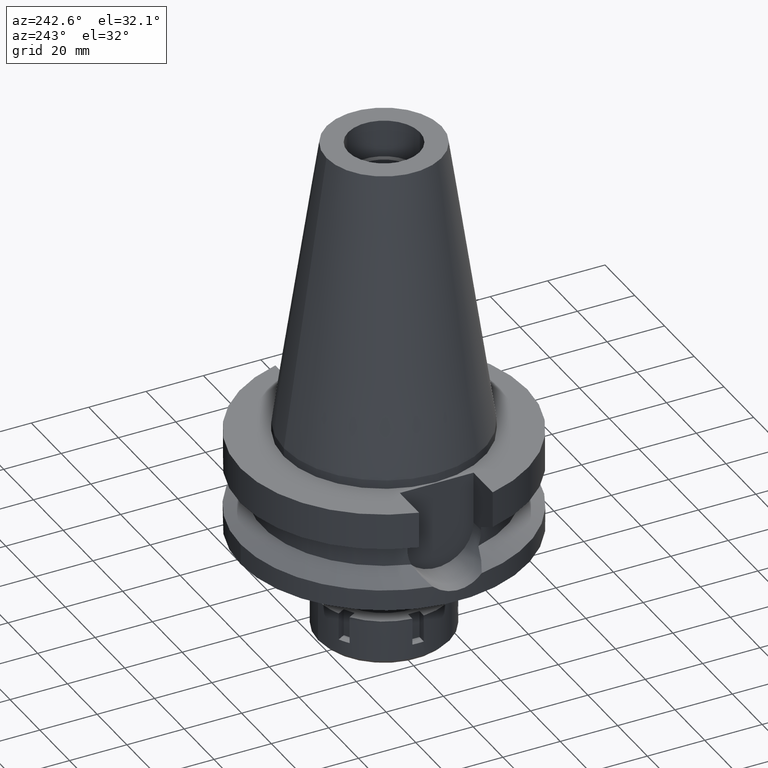
[diagram: clean part render]
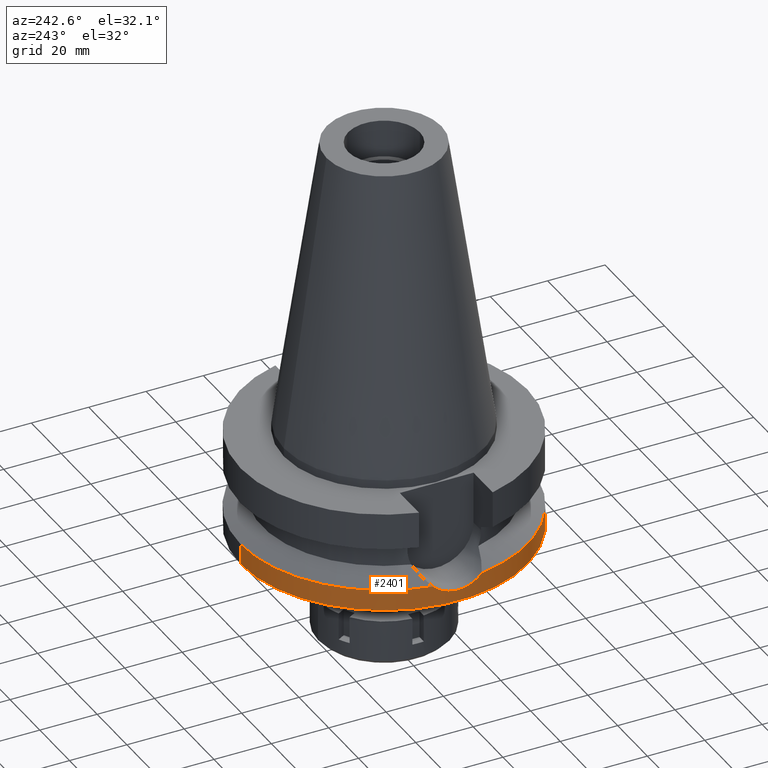
[diagram: same view with one face highlighted and labeled with its STEP entity id]
A machine part, auxiliary view. The second image highlights one B-rep face of the part: STEP entity #2401.
In plain terms, the highlighted cylindrical surface (partial cylindrical patch) has radius 50 mm, axis along (0, 0, -1).
Its self-contained STEP definition (entity closure, byte-faithful):
#23 = CARTESIAN_POINT ( 'NONE',  ( 0.0000000000000000000, -50.00000000000000000, -30.73730776426999967 ) ) ;
#44 = CARTESIAN_POINT ( 'NONE',  ( -49.57428995787913095, -6.510997232708690241, -32.22853959678655400 ) ) ;
#83 = CARTESIAN_POINT ( 'NONE',  ( -49.79012209380309883, 4.576194113386331530, -33.15754248270432925 ) ) ;
#106 = CARTESIAN_POINT ( 'NONE',  ( -49.84651032207489152, -3.920896850693406321, -33.39006912582598829 ) ) ;
#134 = CIRCLE ( 'NONE', #2354, 50.00000000000000000 ) ;
#140 = CARTESIAN_POINT ( 'NONE',  ( -49.81887950449319646, -4.253215501423126987, -33.27643327981128607 ) ) ;
#158 = CARTESIAN_POINT ( 'NONE',  ( -49.99656748919085203, 0.6198751113614259234, -33.98745238093154342 ) ) ;
#165 = CARTESIAN_POINT ( 'NONE',  ( -49.32374122216113932, 8.203452261001164203, -31.05198044006436220 ) ) ;
#195 = CARTESIAN_POINT ( 'NONE',  ( -49.72336919286144052, -5.262903666050025464, -32.87919077022610281 ) ) ;
#204 = CARTESIAN_POINT ( 'NONE',  ( -49.79691665736690709, -4.501773781296282806, -33.18568231507118327 ) ) ;
#205 = CARTESIAN_POINT ( 'NONE',  ( -49.50802364936323841, 6.996643991727932388, -31.92857083701873577 ) ) ;
#209 = DIRECTION ( 'NONE',  ( 0.0000000000000000000, -1.000000000000000000, 0.0000000000000000000 ) ) ;
#226 = DIRECTION ( 'NONE',  ( 0.0000000000000000000, 2.054527022025999694E-14, -1.000000000000000000 ) ) ;
#350 = EDGE_CURVE ( 'NONE', #3390, #3541, #1199, .T. ) ;
#388 = AXIS2_PLACEMENT_3D ( 'NONE', #3614, #1582, #1099 ) ;
#407 = CARTESIAN_POINT ( 'NONE',  ( -49.78718657739884890, 4.608071002113155679, -33.14537780166319436 ) ) ;
#509 = FACE_OUTER_BOUND ( 'NONE', #2215, .T. ) ;
#569 = VECTOR ( 'NONE', #226, 1000.000000000000000 ) ;
#605 = EDGE_CURVE ( 'NONE', #2625, #3541, #728, .T. ) ;
#647 = CARTESIAN_POINT ( 'NONE',  ( -49.99991319832148662, 0.01136593544920845404, -34.00001610124988360 ) ) ;
#668 = CARTESIAN_POINT ( 'NONE',  ( -49.99991212798472162, -0.01359305570049795277, -34.00001368996102258 ) ) ;
#676 = AXIS2_PLACEMENT_3D ( 'NONE', #2985, #3277, #209 ) ;
#705 = CARTESIAN_POINT ( 'NONE',  ( -49.55423850347509074, -6.661675813690730585, -32.13838478411337718 ) ) ;
#722 = CARTESIAN_POINT ( 'NONE',  ( -49.72685100676011416, 5.221220377275514579, -32.89294692250201990 ) ) ;
#728 = CIRCLE ( 'NONE', #676, 50.00000000000000000 ) ;
#751 = CARTESIAN_POINT ( 'NONE',  ( -49.61115140432427495, -6.223964728813258240, -32.39254390159417341 ) ) ;
#921 = EDGE_CURVE ( 'NONE', #2625, #1697, #1432, .T. ) ;
#924 = CARTESIAN_POINT ( 'NONE',  ( -49.99934971133807693, -0.7780250444362698525, -33.99782700924655643 ) ) ;
#941 = CARTESIAN_POINT ( 'NONE',  ( 0.0000000000000000000, -50.00000000000000000, -38.00000000000000000 ) ) ;
#982 = ORIENTED_EDGE ( 'NONE', *, *, #3506, .T. ) ;
#995 = CARTESIAN_POINT ( 'NONE',  ( -49.55328023542170257, 6.668788011807728289, -32.13407698005539714 ) ) ;
#1027 = CARTESIAN_POINT ( 'NONE',  ( -49.66444571852824197, -5.784797249621204784, -32.62588835608794113 ) ) ;
#1035 = CARTESIAN_POINT ( 'NONE',  ( -49.55502993613371387, 6.655769661285224181, -32.14196323977136416 ) ) ;
#1052 = DIRECTION ( 'NONE',  ( -0.9852500129747439050, 0.1711210446826074982, 0.0000000000000000000 ) ) ;
#1099 = DIRECTION ( 'NONE',  ( 0.0000000000000000000, -1.000000000000000000, 0.0000000000000000000 ) ) ;
#1105 = CARTESIAN_POINT ( 'NONE',  ( 0.0000000000000000000, 50.00000000000000000, -30.73730776426999967 ) ) ;
#1157 = CARTESIAN_POINT ( 'NONE',  ( -49.56403511909216775, -6.588443188100936432, -32.18250114706918197 ) ) ;
#1196 = CARTESIAN_POINT ( 'NONE',  ( -49.99187212320570239, 0.9033269224991451463, -33.96962286847858081 ) ) ;
#1199 = B_SPLINE_CURVE_WITH_KNOTS ( 'NONE', 3,
 ( #1311, #165, #1589, #1274, #3516, #205, #2435, #1607, #3554, #995, #1035, #2119, #3253, #2978, #2732, #1334, #722, #1478, #2596, #3229, #407, #83, #1816, #1517, #3211, #2672, #2949, #3190, #1196, #158, #2318, #3445, #2651, #647, #668, #924, #2618, #1531, #3172, #2897, #106, #140, #1221, #204, #1880, #3115, #3353, #2031, #195, #1027, #3157, #751, #1420, #44, #1157, #2001, #3130, #1534, #705, #2623, #2339, #2953 ),
 .UNSPECIFIED., .F., .F.,
 ( 4, 2, 2, 1, 1, 1, 1, 2, 2, 2, 2, 1, 1, 1, 2, 2, 2, 2, 1, 1, 1, 2, 2, 2, 2, 1, 1, 1, 1, 2, 2, 2, 2, 1, 1, 1, 1, 2, 2, 4 ),
 ( 0.0000000000000000000, 0.06249999999997662981, 0.09374999999996481981, 0.1093749999999589911, 0.1171874999999561601, 0.1210937499999548000, 0.1230468749999542033, 0.1240234374999538980, 0.1249999999999535927, 0.1874999999999463207, 0.2187499999999426847, 0.2343749999999410194, 0.2421874999999404088, 0.2460937499999401312, 0.2480468749999402422, 0.2499999999999403810, 0.3749999999999532596, 0.4374999999999597544, 0.4687499999999629741, 0.4843749999999646394, 0.4921874999999654721, 0.4960937499999658606, 0.4999999999999662492, 0.6249999999999794609, 0.6874999999999860112, 0.7187499999999893419, 0.7343749999999908962, 0.7421874999999914513, 0.7460937499999917843, 0.7480468749999918954, 0.7499999999999918954, 0.8124999999999905631, 0.8437499999999900080, 0.8593749999999901190, 0.8671874999999897859, 0.8710937499999896749, 0.8730468749999895639, 0.8740234374999891198, 0.8749999999999887867, 1.000000000000000000 ),
 .UNSPECIFIED. ) ;
#1204 = CARTESIAN_POINT ( 'NONE',  ( 0.0000000000000000000, -50.00000000000000000, -30.73730776426999967 ) ) ;
#1221 = CARTESIAN_POINT ( 'NONE',  ( -49.80435567630806304, -4.418991949898243732, -33.21646025974828831 ) ) ;
#1235 = CARTESIAN_POINT ( 'NONE',  ( 0.0000000000000000000, 50.00000000000000000, -30.73730776426999967 ) ) ;
#1274 = CARTESIAN_POINT ( 'NONE',  ( -49.45264547004614997, 7.378484262543210548, -31.67235839551796417 ) ) ;
#1311 = CARTESIAN_POINT ( 'NONE',  ( -49.26250064874000145, 8.556052234130000045, -30.73730776426999967 ) ) ;
#1324 = EDGE_CURVE ( 'NONE', #3390, #1679, #1389, .T. ) ;
#1334 = CARTESIAN_POINT ( 'NONE',  ( -49.70819606406563906, 5.395925772775568952, -32.81381563389020073 ) ) ;
#1352 = EDGE_CURVE ( 'NONE', #1679, #3454, #2194, .T. ) ;
#1385 = CYLINDRICAL_SURFACE ( 'NONE', #388, 50.00000000000000000 ) ;
#1389 = CIRCLE ( 'NONE', #1918, 50.00000000000000000 ) ;
#1413 = CARTESIAN_POINT ( 'NONE',  ( 0.0000000000000000000, 50.00000000000000000, -38.00000000000000000 ) ) ;
#1420 = CARTESIAN_POINT ( 'NONE',  ( -49.59445580811924970, -6.356262090372325702, -32.31864549500480877 ) ) ;
#1432 = LINE ( 'NONE', #1204, #3434 ) ;
#1478 = CARTESIAN_POINT ( 'NONE',  ( -49.75323403135911349, 4.961523143393475443, -33.00388751679233224 ) ) ;
#1517 = CARTESIAN_POINT ( 'NONE',  ( -49.79292594742166500, 4.545608915825968488, -33.16915556112412844 ) ) ;
#1531 = CARTESIAN_POINT ( 'NONE',  ( -49.92889851896929798, -2.680302569627641240, -33.72333287918098677 ) ) ;
#1534 = CARTESIAN_POINT ( 'NONE',  ( -49.55515418396314686, -6.654861456570343670, -32.14251385469140132 ) ) ;
#1582 = DIRECTION ( 'NONE',  ( 0.0000000000000000000, 0.0000000000000000000, -1.000000000000000000 ) ) ;
#1589 = CARTESIAN_POINT ( 'NONE',  ( -49.37893249916534444, 7.861649085484534893, -31.32227597551306886 ) ) ;
#1607 = CARTESIAN_POINT ( 'NONE',  ( -49.54081522922346181, 6.760831091920683988, -32.07779346151922084 ) ) ;
#1679 = VERTEX_POINT ( 'NONE', #1235 ) ;
#1697 = VERTEX_POINT ( 'NONE', #941 ) ;
#1816 = CARTESIAN_POINT ( 'NONE',  ( -49.79207077458590902, 4.554957529713364650, -33.16561446368219634 ) ) ;
#1880 = CARTESIAN_POINT ( 'NONE',  ( -49.79369055535314459, -4.537227758150931933, -33.17232190024886052 ) ) ;
#1884 = ORIENTED_EDGE ( 'NONE', *, *, #350, .F. ) ;
#1918 = AXIS2_PLACEMENT_3D ( 'NONE', #2458, #2754, #1052 ) ;
#2001 = CARTESIAN_POINT ( 'NONE',  ( -49.55886472128196374, -6.627183405077431644, -32.15923396755652419 ) ) ;
#2031 = CARTESIAN_POINT ( 'NONE',  ( -49.75846009015725002, -4.919875095720870561, -33.02628834737515717 ) ) ;
#2034 = DIRECTION ( 'NONE',  ( 0.0000000000000000000, -2.054527022025999694E-14, -1.000000000000000000 ) ) ;
#2119 = CARTESIAN_POINT ( 'NONE',  ( -49.55619344951702487, 6.647103290417518018, -32.14720616770868844 ) ) ;
#2194 = LINE ( 'NONE', #1105, #569 ) ;
#2215 = EDGE_LOOP ( 'NONE', ( #3101, #3508, #982, #2821, #3235, #1884 ) ) ;
#2318 = CARTESIAN_POINT ( 'NONE',  ( -49.99918498204722539, 0.2914842724597384582, -33.99728988284419984 ) ) ;
#2339 = CARTESIAN_POINT ( 'NONE',  ( -49.38328813172314113, -7.860603761373486265, -31.35795055631948003 ) ) ;
#2354 = AXIS2_PLACEMENT_3D ( 'NONE', #3091, #3333, #2774 ) ;
#2401 = ADVANCED_FACE ( 'NONE', ( #509 ), #1385, .T. ) ;
#2435 = CARTESIAN_POINT ( 'NONE',  ( -49.52361628438797680, 6.885959953619405383, -31.99982566495546266 ) ) ;
#2458 = CARTESIAN_POINT ( 'NONE',  ( 0.0000000000000000000, 0.0000000000000000000, -30.73730776426999967 ) ) ;
#2596 = CARTESIAN_POINT ( 'NONE',  ( -49.76602569629795170, 4.832263764384971516, -33.05741896580975947 ) ) ;
#2618 = CARTESIAN_POINT ( 'NONE',  ( -49.98153239810164195, -1.536309942671559403, -33.93135900371453317 ) ) ;
#2623 = CARTESIAN_POINT ( 'NONE',  ( -49.48034313920781102, -7.211008699321713955, -31.80506207859566814 ) ) ;
#2625 = VERTEX_POINT ( 'NONE', #23 ) ;
#2651 = CARTESIAN_POINT ( 'NONE',  ( -49.99987979864274479, 0.05796992316366516435, -33.99989036820463184 ) ) ;
#2672 = CARTESIAN_POINT ( 'NONE',  ( -49.91494156086609735, 3.003678810935825005, -33.66822178009046951 ) ) ;
#2732 = CARTESIAN_POINT ( 'NONE',  ( -49.64903245709678714, 5.923660224942141284, -32.55987247457998990 ) ) ;
#2754 = DIRECTION ( 'NONE',  ( 0.0000000000000000000, 0.0000000000000000000, -1.000000000000000000 ) ) ;
#2774 = DIRECTION ( 'NONE',  ( 0.0000000000000000000, 1.000000000000000000, 0.0000000000000000000 ) ) ;
#2821 = ORIENTED_EDGE ( 'NONE', *, *, #921, .F. ) ;
#2897 = CARTESIAN_POINT ( 'NONE',  ( -49.86776501350723123, -3.635030136235552600, -33.47672996167086978 ) ) ;
#2949 = CARTESIAN_POINT ( 'NONE',  ( -49.96641370053627895, 1.854335669572501066, -33.87145058388587415 ) ) ;
#2953 = CARTESIAN_POINT ( 'NONE',  ( -49.26250064874000145, -8.556052234130000045, -30.73730776426999967 ) ) ;
#2978 = CARTESIAN_POINT ( 'NONE',  ( -49.60532501393698368, 6.280351743934532216, -32.36849389323545267 ) ) ;
#2985 = CARTESIAN_POINT ( 'NONE',  ( 0.0000000000000000000, 0.0000000000000000000, -30.73730776426999967 ) ) ;
#3091 = CARTESIAN_POINT ( 'NONE',  ( 0.0000000000000000000, 2.574697430526999748E-14, -38.00000000000000000 ) ) ;
#3101 = ORIENTED_EDGE ( 'NONE', *, *, #1324, .T. ) ;
#3115 = CARTESIAN_POINT ( 'NONE',  ( -49.79153138711308912, -4.560858291747295290, -33.16337717900918847 ) ) ;
#3130 = CARTESIAN_POINT ( 'NONE',  ( -49.55663962684543833, -6.643789794477702237, -32.14920901785766461 ) ) ;
#3157 = CARTESIAN_POINT ( 'NONE',  ( -49.64375670568561105, -5.959977034255937056, -32.53601313236010384 ) ) ;
#3172 = CARTESIAN_POINT ( 'NONE',  ( -49.90703590771223475, -3.062680104425982819, -33.63596624755703601 ) ) ;
#3190 = CARTESIAN_POINT ( 'NONE',  ( -49.97921232366238797, 1.472283131394879208, -33.92105330255621709 ) ) ;
#3211 = CARTESIAN_POINT ( 'NONE',  ( -49.86319177403027680, 3.774326660461282401, -33.45998250815014075 ) ) ;
#3229 = CARTESIAN_POINT ( 'NONE',  ( -49.78024957251207638, 4.682602905515021341, -33.11659475753657489 ) ) ;
#3235 = ORIENTED_EDGE ( 'NONE', *, *, #605, .T. ) ;
#3253 = CARTESIAN_POINT ( 'NONE',  ( -49.55660296223717864, 6.644051108407256656, -32.14905121247949893 ) ) ;
#3259 = CARTESIAN_POINT ( 'NONE',  ( -49.26250064874000145, 8.556052234130000045, -30.73730776426999967 ) ) ;
#3277 = DIRECTION ( 'NONE',  ( 0.0000000000000000000, 0.0000000000000000000, -1.000000000000000000 ) ) ;
#3333 = DIRECTION ( 'NONE',  ( 0.0000000000000000000, 0.0000000000000000000, 1.000000000000000000 ) ) ;
#3353 = CARTESIAN_POINT ( 'NONE',  ( -49.79032517722575335, -4.573999506056388498, -33.15837850808620146 ) ) ;
#3390 = VERTEX_POINT ( 'NONE', #3259 ) ;
#3434 = VECTOR ( 'NONE', #2034, 1000.000000000000000 ) ;
#3445 = CARTESIAN_POINT ( 'NONE',  ( -49.99977861994381811, 0.1279244560531400121, -33.99951148631579656 ) ) ;
#3454 = VERTEX_POINT ( 'NONE', #1413 ) ;
#3506 = EDGE_CURVE ( 'NONE', #3454, #1697, #134, .T. ) ;
#3508 = ORIENTED_EDGE ( 'NONE', *, *, #1352, .T. ) ;
#3516 = CARTESIAN_POINT ( 'NONE',  ( -49.47570413623554231, 7.222306620554453715, -31.77982844739971213 ) ) ;
#3541 = VERTEX_POINT ( 'NONE', #3612 ) ;
#3554 = CARTESIAN_POINT ( 'NONE',  ( -49.54916658596784629, 6.699295305522862343, -32.11552208853033363 ) ) ;
#3612 = CARTESIAN_POINT ( 'NONE',  ( -49.26250064874000145, -8.556052234130000045, -30.73730776426999967 ) ) ;
#3614 = CARTESIAN_POINT ( 'NONE',  ( 0.0000000000000000000, 2.574697430526999748E-14, 110.2400000000000091 ) ) ;